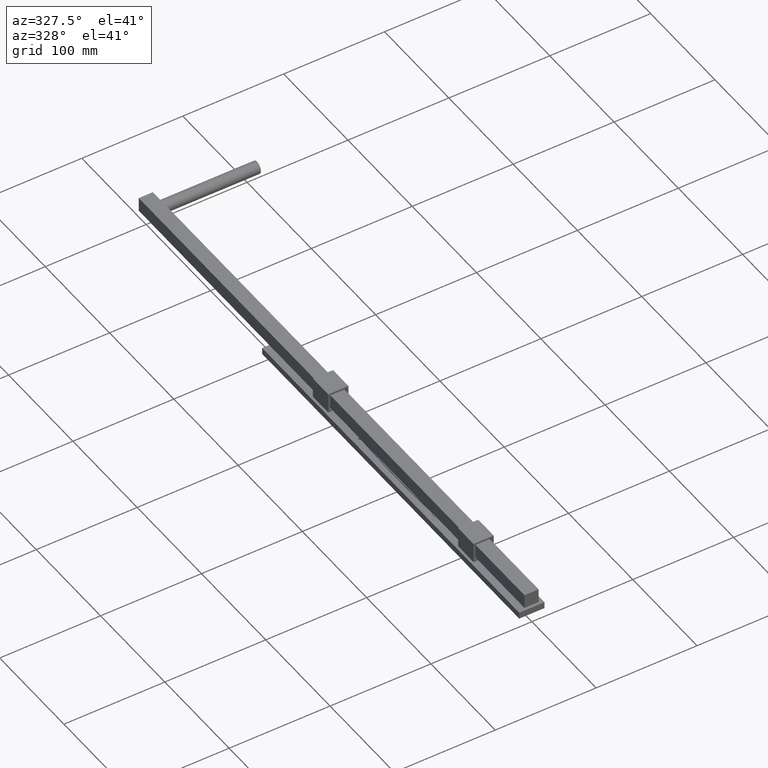
[diagram: clean part render]
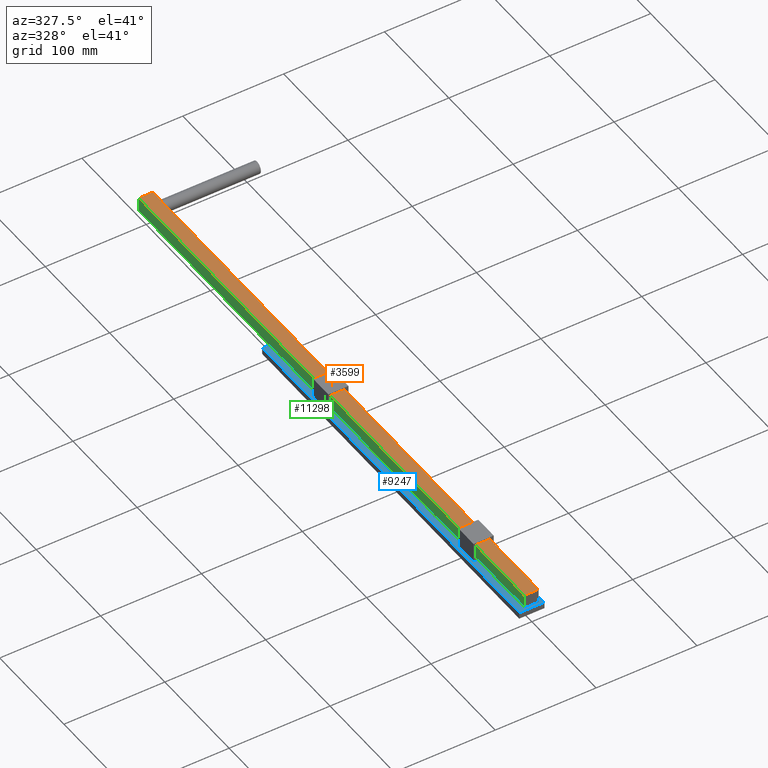
[diagram: same view with three faces highlighted in distinct colors, each labeled with its STEP entity id]
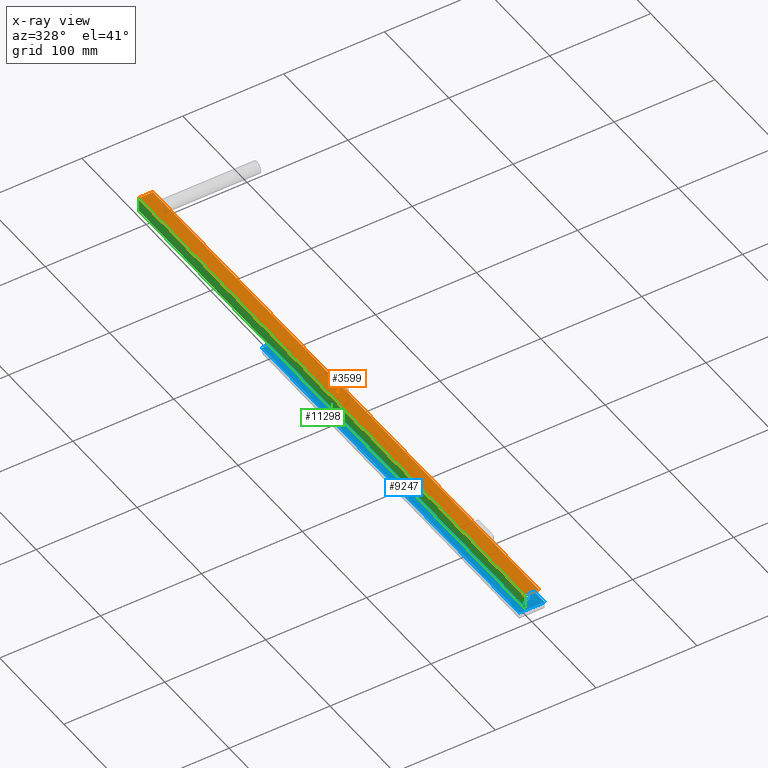
[diagram: x-ray of the same camera — body ghosted, the three highlighted faces saturated]
A machine part, auxiliary view with three faces highlighted in distinct colors.
The next image is the same camera in x-ray (body ghosted, the three faces saturated) — at least one of them is partly hidden behind the body in this view.
Their STEP definitions:

[orange] entity #3599 — the highlighted planar face has unit normal (-0, 0, 1).
#117 = DIRECTION ( 'NONE',  ( -1.000000000000000000, -0.000000000000000000, -4.956352788505163268E-16 ) ) ;
#293 = VECTOR ( 'NONE', #117, 1000.000000000000000 ) ;
#315 = EDGE_CURVE ( 'NONE', #10761, #4314, #9015, .T. ) ;
#750 = CARTESIAN_POINT ( 'NONE',  ( -7.327582637954876077, 400.0000000000000000, 23.49674784966147456 ) ) ;
#1167 = CARTESIAN_POINT ( 'NONE',  ( -7.327582637954876077, -199.9999999999999716, 23.49674784966147456 ) ) ;
#1230 = CARTESIAN_POINT ( 'NONE',  ( -7.327582637954876077, 400.0000000000000000, 23.49674784966147456 ) ) ;
#2295 = PLANE ( 'NONE',  #5203 ) ;
#2723 = CARTESIAN_POINT ( 'NONE',  ( 6.672417362045123923, 400.0000000000000000, 23.49674784966148167 ) ) ;
#2940 = ORIENTED_EDGE ( 'NONE', *, *, #11943, .T. ) ;
#3599 = ADVANCED_FACE ( 'NONE', ( #4217 ), #2295, .T. ) ;
#4091 = EDGE_CURVE ( 'NONE', #6519, #5070, #11208, .T. ) ;
#4127 = CARTESIAN_POINT ( 'NONE',  ( -7.327582637954876077, -199.9999999999999716, 23.49674784966147456 ) ) ;
#4217 = FACE_OUTER_BOUND ( 'NONE', #11710, .T. ) ;
#4223 = LINE ( 'NONE', #750, #8393 ) ;
#4314 = VERTEX_POINT ( 'NONE', #5205 ) ;
#5044 = ORIENTED_EDGE ( 'NONE', *, *, #6139, .F. ) ;
#5070 = VERTEX_POINT ( 'NONE', #4127 ) ;
#5124 = VECTOR ( 'NONE', #5735, 1000.000000000000000 ) ;
#5203 = AXIS2_PLACEMENT_3D ( 'NONE', #1230, #8949, #11862 ) ;
#5205 = CARTESIAN_POINT ( 'NONE',  ( -7.327582637954876077, 400.0000000000000000, 23.49674784966147456 ) ) ;
#5480 = DIRECTION ( 'NONE',  ( -0.000000000000000000, -1.000000000000000000, -0.000000000000000000 ) ) ;
#5608 = CARTESIAN_POINT ( 'NONE',  ( 6.672417362045123923, 400.0000000000000000, 23.49674784966148167 ) ) ;
#5735 = DIRECTION ( 'NONE',  ( -1.000000000000000000, -0.000000000000000000, -4.956352788505163268E-16 ) ) ;
#6139 = EDGE_CURVE ( 'NONE', #10761, #6519, #11443, .T. ) ;
#6506 = ORIENTED_EDGE ( 'NONE', *, *, #315, .T. ) ;
#6519 = VERTEX_POINT ( 'NONE', #12032 ) ;
#6693 = CARTESIAN_POINT ( 'NONE',  ( -7.327582637954876077, 400.0000000000000000, 23.49674784966147456 ) ) ;
#8056 = ORIENTED_EDGE ( 'NONE', *, *, #4091, .F. ) ;
#8393 = VECTOR ( 'NONE', #8515, 1000.000000000000000 ) ;
#8515 = DIRECTION ( 'NONE',  ( -0.000000000000000000, -1.000000000000000000, -0.000000000000000000 ) ) ;
#8949 = DIRECTION ( 'NONE',  ( -4.956352788505163268E-16, 0.000000000000000000, 1.000000000000000000 ) ) ;
#9015 = LINE ( 'NONE', #6693, #5124 ) ;
#10761 = VERTEX_POINT ( 'NONE', #2723 ) ;
#11208 = LINE ( 'NONE', #1167, #293 ) ;
#11443 = LINE ( 'NONE', #5608, #11591 ) ;
#11591 = VECTOR ( 'NONE', #5480, 1000.000000000000000 ) ;
#11710 = EDGE_LOOP ( 'NONE', ( #8056, #5044, #6506, #2940 ) ) ;
#11862 = DIRECTION ( 'NONE',  ( 1.000000000000000000, 0.000000000000000000, 4.956352788505163268E-16 ) ) ;
#11943 = EDGE_CURVE ( 'NONE', #4314, #5070, #4223, .T. ) ;
#12032 = CARTESIAN_POINT ( 'NONE',  ( 6.672417362045123923, -199.9999999999999716, 23.49674784966148167 ) ) ;

[blue] entity #9247 — the highlighted planar face has unit normal (-0, 0, 1).
#12 = CARTESIAN_POINT ( 'NONE',  ( 12.49999999999995559, 200.0000000000000853, 6.500000000000000000 ) ) ;
#195 = VERTEX_POINT ( 'NONE', #3695 ) ;
#357 = DIRECTION ( 'NONE',  ( 1.000000000000000000, 0.000000000000000000, 0.000000000000000000 ) ) ;
#544 = CARTESIAN_POINT ( 'NONE',  ( -12.49999999999998401, -199.9999999999999716, 6.500000000000000000 ) ) ;
#943 = ORIENTED_EDGE ( 'NONE', *, *, #9344, .T. ) ;
#1152 = CARTESIAN_POINT ( 'NONE',  ( 0.000000000000000000, -184.0000000000000000, 6.500000000000000000 ) ) ;
#1239 = VERTEX_POINT ( 'NONE', #11098 ) ;
#1379 = CARTESIAN_POINT ( 'NONE',  ( 6.875000000000185629, 184.0000000000000853, 6.500000000000000000 ) ) ;
#1516 = CARTESIAN_POINT ( 'NONE',  ( 0.000000000000000000, 0.000000000000000000, 6.500000000000000000 ) ) ;
#1644 = LINE ( 'NONE', #2886, #10168 ) ;
#1763 = ORIENTED_EDGE ( 'NONE', *, *, #10312, .T. ) ;
#1837 = EDGE_CURVE ( 'NONE', #10457, #10457, #2683, .T. ) ;
#1971 = ORIENTED_EDGE ( 'NONE', *, *, #10662, .T. ) ;
#2161 = AXIS2_PLACEMENT_3D ( 'NONE', #6477, #10324, #12248 ) ;
#2220 = DIRECTION ( 'NONE',  ( 0.000000000000000000, -0.000000000000000000, -1.000000000000000000 ) ) ;
#2244 = FACE_BOUND ( 'NONE', #3234, .T. ) ;
#2328 = CARTESIAN_POINT ( 'NONE',  ( 6.875000000000185629, -184.0000000000000000, 6.500000000000000000 ) ) ;
#2683 = CIRCLE ( 'NONE', #5906, 6.875000000000185629 ) ;
#2886 = CARTESIAN_POINT ( 'NONE',  ( -12.50000000000003908, 200.0000000000000853, 6.500000000000000000 ) ) ;
#3234 = EDGE_LOOP ( 'NONE', ( #11574 ) ) ;
#3695 = CARTESIAN_POINT ( 'NONE',  ( -12.50000000000003908, 200.0000000000000853, 6.500000000000000000 ) ) ;
#4339 = CARTESIAN_POINT ( 'NONE',  ( 12.49999999999995559, 200.0000000000000853, 6.500000000000000000 ) ) ;
#4571 = EDGE_LOOP ( 'NONE', ( #11570 ) ) ;
#5172 = ORIENTED_EDGE ( 'NONE', *, *, #5977, .T. ) ;
#5210 = VERTEX_POINT ( 'NONE', #6136 ) ;
#5400 = LINE ( 'NONE', #7581, #10178 ) ;
#5906 = AXIS2_PLACEMENT_3D ( 'NONE', #1152, #2220, #357 ) ;
#5977 = EDGE_CURVE ( 'NONE', #5210, #1239, #11902, .T. ) ;
#6136 = CARTESIAN_POINT ( 'NONE',  ( -12.49999999999998401, -199.9999999999999716, 6.500000000000000000 ) ) ;
#6262 = VERTEX_POINT ( 'NONE', #1379 ) ;
#6400 = AXIS2_PLACEMENT_3D ( 'NONE', #1516, #10038, #11138 ) ;
#6477 = CARTESIAN_POINT ( 'NONE',  ( 0.000000000000000000, 184.0000000000000853, 6.500000000000000000 ) ) ;
#7513 = FACE_OUTER_BOUND ( 'NONE', #10603, .T. ) ;
#7581 = CARTESIAN_POINT ( 'NONE',  ( -12.50000000000003908, 200.0000000000000853, 6.500000000000000000 ) ) ;
#7784 = LINE ( 'NONE', #4339, #12148 ) ;
#8545 = DIRECTION ( 'NONE',  ( 1.387778780781445429E-16, -1.000000000000000000, 0.000000000000000000 ) ) ;
#9050 = VECTOR ( 'NONE', #12080, 1000.000000000000000 ) ;
#9095 = DIRECTION ( 'NONE',  ( -1.387778780781445429E-16, 1.000000000000000000, -0.000000000000000000 ) ) ;
#9247 = ADVANCED_FACE ( 'NONE', ( #2244, #12319, #7513 ), #10199, .T. ) ;
#9286 = EDGE_CURVE ( 'NONE', #6262, #6262, #10336, .T. ) ;
#9344 = EDGE_CURVE ( 'NONE', #195, #5210, #5400, .T. ) ;
#10038 = DIRECTION ( 'NONE',  ( -0.000000000000000000, 0.000000000000000000, 1.000000000000000000 ) ) ;
#10168 = VECTOR ( 'NONE', #12417, 1000.000000000000000 ) ;
#10178 = VECTOR ( 'NONE', #8545, 1000.000000000000000 ) ;
#10199 = PLANE ( 'NONE',  #6400 ) ;
#10312 = EDGE_CURVE ( 'NONE', #1239, #10718, #7784, .T. ) ;
#10324 = DIRECTION ( 'NONE',  ( 0.000000000000000000, -0.000000000000000000, -1.000000000000000000 ) ) ;
#10336 = CIRCLE ( 'NONE', #2161, 6.875000000000185629 ) ;
#10457 = VERTEX_POINT ( 'NONE', #2328 ) ;
#10603 = EDGE_LOOP ( 'NONE', ( #1763, #1971, #943, #5172 ) ) ;
#10662 = EDGE_CURVE ( 'NONE', #10718, #195, #1644, .T. ) ;
#10718 = VERTEX_POINT ( 'NONE', #12 ) ;
#11098 = CARTESIAN_POINT ( 'NONE',  ( 12.50000000000001066, -199.9999999999999716, 6.500000000000000000 ) ) ;
#11138 = DIRECTION ( 'NONE',  ( 1.000000000000000000, 0.000000000000000000, 0.000000000000000000 ) ) ;
#11570 = ORIENTED_EDGE ( 'NONE', *, *, #9286, .T. ) ;
#11574 = ORIENTED_EDGE ( 'NONE', *, *, #1837, .T. ) ;
#11902 = LINE ( 'NONE', #544, #9050 ) ;
#12080 = DIRECTION ( 'NONE',  ( 1.000000000000000000, 0.000000000000000000, 0.000000000000000000 ) ) ;
#12148 = VECTOR ( 'NONE', #9095, 1000.000000000000000 ) ;
#12248 = DIRECTION ( 'NONE',  ( 1.000000000000000000, 0.000000000000000000, 0.000000000000000000 ) ) ;
#12319 = FACE_BOUND ( 'NONE', #4571, .T. ) ;
#12417 = DIRECTION ( 'NONE',  ( -1.000000000000000000, -0.000000000000000000, -0.000000000000000000 ) ) ;

[green] entity #11298 — the highlighted planar face has unit normal (-1, 0, -0).
#182 = VERTEX_POINT ( 'NONE', #7424 ) ;
#750 = CARTESIAN_POINT ( 'NONE',  ( -7.327582637954876077, 400.0000000000000000, 23.49674784966147456 ) ) ;
#1059 = CARTESIAN_POINT ( 'NONE',  ( -7.327582637954873412, 400.0000000000000000, 9.496747849661478114 ) ) ;
#1564 = ORIENTED_EDGE ( 'NONE', *, *, #11657, .T. ) ;
#1781 = FACE_OUTER_BOUND ( 'NONE', #5746, .T. ) ;
#1985 = PLANE ( 'NONE',  #7638 ) ;
#2815 = DIRECTION ( 'NONE',  ( -1.000000000000000000, 0.000000000000000000, -2.478176394252582127E-16 ) ) ;
#2862 = CARTESIAN_POINT ( 'NONE',  ( -7.327582637954873412, 400.0000000000000000, 9.496747849661478114 ) ) ;
#3502 = ORIENTED_EDGE ( 'NONE', *, *, #3843, .F. ) ;
#3653 = EDGE_CURVE ( 'NONE', #9832, #182, #8071, .T. ) ;
#3714 = DIRECTION ( 'NONE',  ( -2.478176394252582127E-16, 0.000000000000000000, 1.000000000000000000 ) ) ;
#3843 = EDGE_CURVE ( 'NONE', #5070, #182, #7641, .T. ) ;
#4127 = CARTESIAN_POINT ( 'NONE',  ( -7.327582637954876077, -199.9999999999999716, 23.49674784966147456 ) ) ;
#4223 = LINE ( 'NONE', #750, #8393 ) ;
#4314 = VERTEX_POINT ( 'NONE', #5205 ) ;
#4711 = DIRECTION ( 'NONE',  ( 2.478176394252582127E-16, -0.000000000000000000, -1.000000000000000000 ) ) ;
#5070 = VERTEX_POINT ( 'NONE', #4127 ) ;
#5205 = CARTESIAN_POINT ( 'NONE',  ( -7.327582637954876077, 400.0000000000000000, 23.49674784966147456 ) ) ;
#5456 = ORIENTED_EDGE ( 'NONE', *, *, #3653, .T. ) ;
#5746 = EDGE_LOOP ( 'NONE', ( #3502, #7438, #1564, #5456 ) ) ;
#6791 = DIRECTION ( 'NONE',  ( 2.478176394252582127E-16, -0.000000000000000000, -1.000000000000000000 ) ) ;
#7424 = CARTESIAN_POINT ( 'NONE',  ( -7.327582637954873412, -199.9999999999999716, 9.496747849661478114 ) ) ;
#7438 = ORIENTED_EDGE ( 'NONE', *, *, #11943, .F. ) ;
#7638 = AXIS2_PLACEMENT_3D ( 'NONE', #2862, #2815, #3714 ) ;
#7641 = LINE ( 'NONE', #12397, #10161 ) ;
#7775 = VECTOR ( 'NONE', #9017, 1000.000000000000000 ) ;
#8071 = LINE ( 'NONE', #8905, #7775 ) ;
#8393 = VECTOR ( 'NONE', #8515, 1000.000000000000000 ) ;
#8515 = DIRECTION ( 'NONE',  ( -0.000000000000000000, -1.000000000000000000, -0.000000000000000000 ) ) ;
#8905 = CARTESIAN_POINT ( 'NONE',  ( -7.327582637954873412, 400.0000000000000000, 9.496747849661478114 ) ) ;
#9017 = DIRECTION ( 'NONE',  ( -0.000000000000000000, -1.000000000000000000, -0.000000000000000000 ) ) ;
#9832 = VERTEX_POINT ( 'NONE', #11617 ) ;
#10161 = VECTOR ( 'NONE', #4711, 1000.000000000000000 ) ;
#10936 = LINE ( 'NONE', #1059, #11989 ) ;
#11298 = ADVANCED_FACE ( 'NONE', ( #1781 ), #1985, .T. ) ;
#11617 = CARTESIAN_POINT ( 'NONE',  ( -7.327582637954873412, 400.0000000000000000, 9.496747849661478114 ) ) ;
#11657 = EDGE_CURVE ( 'NONE', #4314, #9832, #10936, .T. ) ;
#11943 = EDGE_CURVE ( 'NONE', #4314, #5070, #4223, .T. ) ;
#11989 = VECTOR ( 'NONE', #6791, 1000.000000000000000 ) ;
#12397 = CARTESIAN_POINT ( 'NONE',  ( -7.327582637954873412, -199.9999999999999716, 9.496747849661478114 ) ) ;